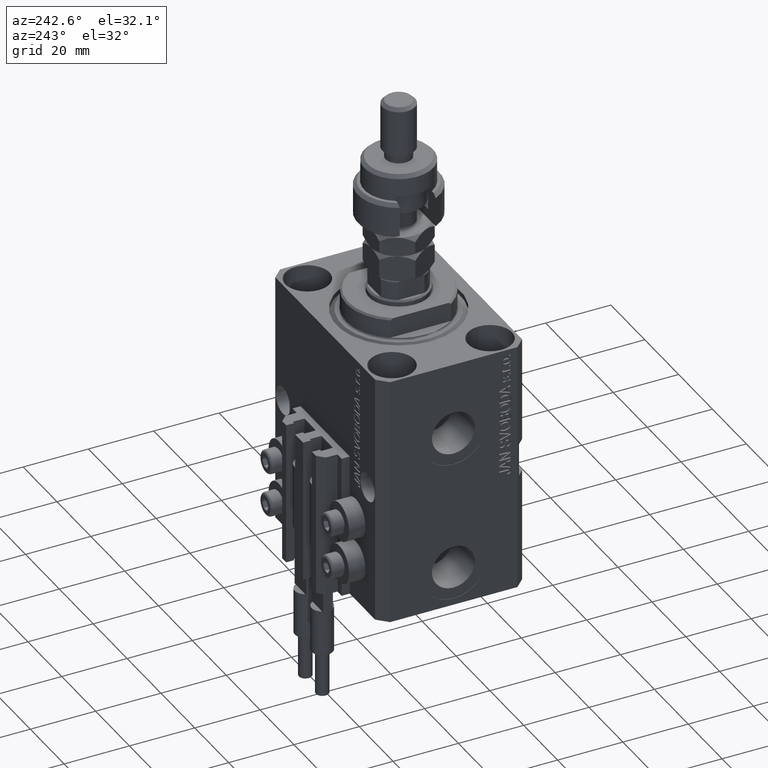
[diagram: clean part render]
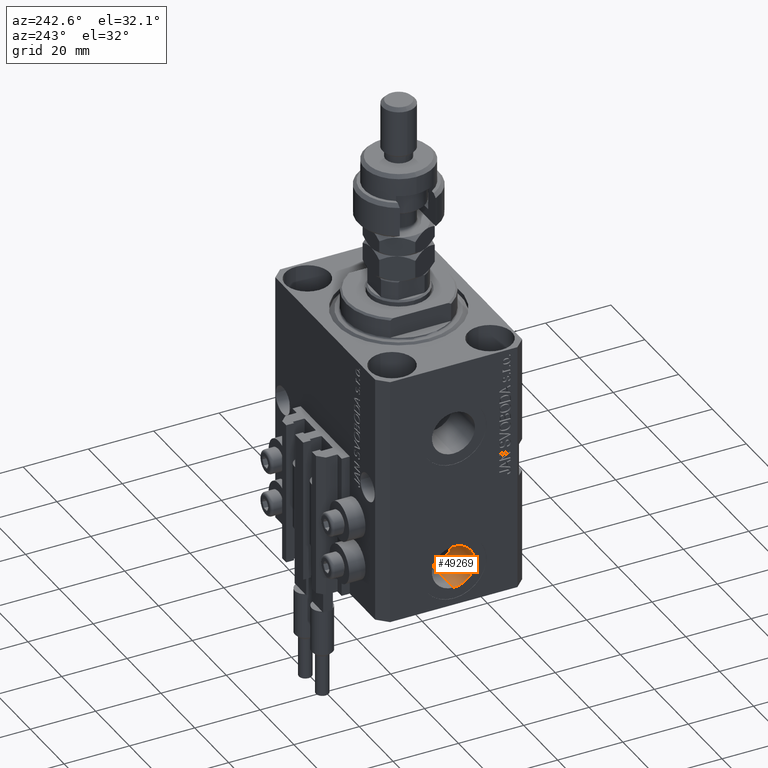
[diagram: same view with one face highlighted and labeled with its STEP entity id]
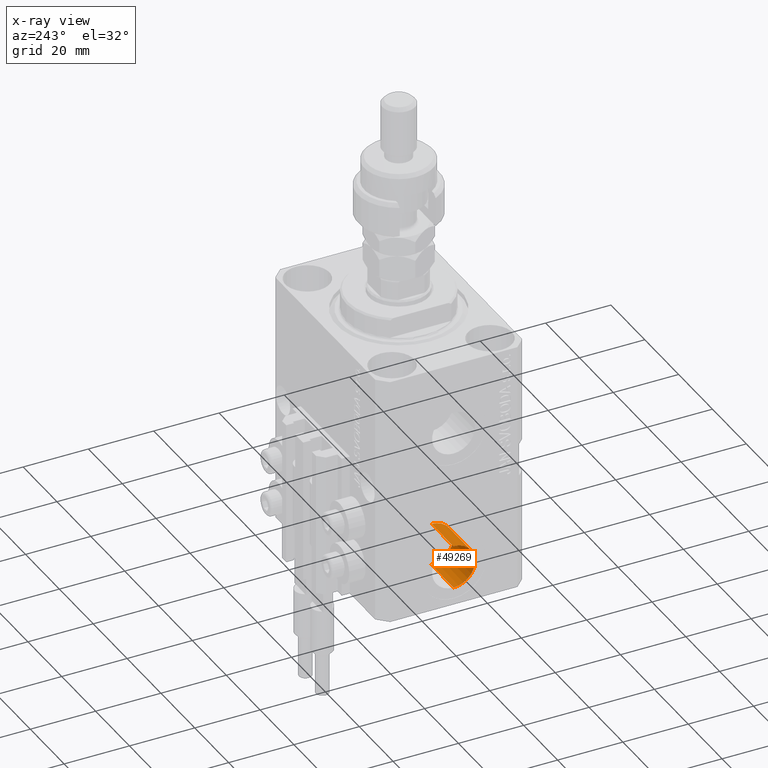
[diagram: x-ray of the same camera — body ghosted, the highlighted face saturated]
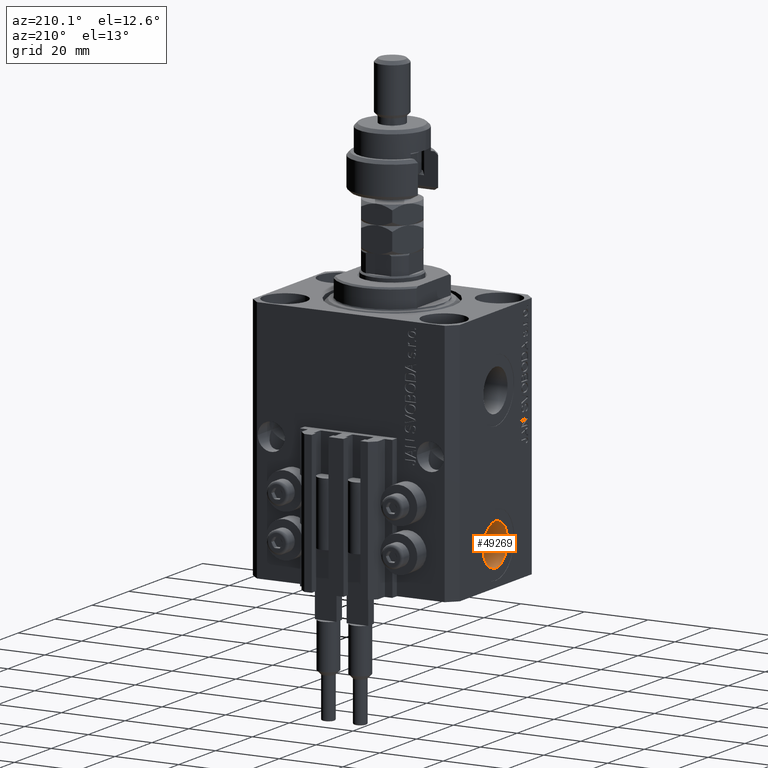
[diagram: same view with one face highlighted and labeled with its STEP entity id]
A machine part, auxiliary view. The second image highlights one B-rep face of the part: STEP entity #49269.
The next image is the same camera in x-ray: the body ghosted, the highlighted face saturated — about 0% of this face is hidden behind the body in this view.
A second angle (auxiliary view) of the same face is appended — the face is thin or edge-on in the first view.
In plain terms, the highlighted cylindrical surface (edge-blend (fillet) strip) has radius 6.58 mm, axis along (-1, -0, -0).
Its self-contained STEP definition (entity closure, byte-faithful):
#90 = CARTESIAN_POINT ( 'NONE',  ( -19.39999999999650271, -6.938893903907228378E-15, -65.00000000000000000 ) ) ;
#4144 = ORIENTED_EDGE ( 'NONE', *, *, #40771, .F. ) ;
#4472 = LINE ( 'NONE', #20309, #28624 ) ;
#5113 = EDGE_CURVE ( 'NONE', #42016, #50476, #9155, .T. ) ;
#7872 = FACE_OUTER_BOUND ( 'NONE', #27481, .T. ) ;
#9155 = CIRCLE ( 'NONE', #49822, 6.580000000000002736 ) ;
#9468 = CARTESIAN_POINT ( 'NONE',  ( -19.39999999999650271, -6.133076310068269336E-15, -71.57999999999999829 ) ) ;
#9536 = VERTEX_POINT ( 'NONE', #9468 ) ;
#10166 = CIRCLE ( 'NONE', #36722, 6.580000000000002736 ) ;
#10788 = DIRECTION ( 'NONE',  ( -1.000000000000000000, 0.000000000000000000, 0.000000000000000000 ) ) ;
#14215 = ORIENTED_EDGE ( 'NONE', *, *, #5113, .T. ) ;
#15043 = CARTESIAN_POINT ( 'NONE',  ( -19.39999999999650271, -6.938893903907228378E-15, -58.42000000000000171 ) ) ;
#17998 = EDGE_CURVE ( 'NONE', #9536, #42016, #4472, .T. ) ;
#18836 = DIRECTION ( 'NONE',  ( 0.000000000000000000, 0.000000000000000000, 1.000000000000000000 ) ) ;
#20309 = CARTESIAN_POINT ( 'NONE',  ( -19.39999999999650271, -6.133076310068269336E-15, -71.57999999999999829 ) ) ;
#21426 = CARTESIAN_POINT ( 'NONE',  ( -32.39999999999650271, -6.133076310068269336E-15, -71.57999999999999829 ) ) ;
#23028 = ORIENTED_EDGE ( 'NONE', *, *, #17998, .T. ) ;
#26532 = VECTOR ( 'NONE', #39678, 1000.000000000000000 ) ;
#27481 = EDGE_LOOP ( 'NONE', ( #4144, #23028, #14215, #45116 ) ) ;
#28499 = CARTESIAN_POINT ( 'NONE',  ( -19.39999999999650271, -6.938893903907228378E-15, -58.42000000000000171 ) ) ;
#28624 = VECTOR ( 'NONE', #35908, 1000.000000000000000 ) ;
#28758 = AXIS2_PLACEMENT_3D ( 'NONE', #90, #31769, #47608 ) ;
#30829 = EDGE_CURVE ( 'NONE', #39574, #50476, #50315, .T. ) ;
#31769 = DIRECTION ( 'NONE',  ( -1.000000000000000000, -0.000000000000000000, -0.000000000000000000 ) ) ;
#35908 = DIRECTION ( 'NONE',  ( -1.000000000000000000, -0.000000000000000000, -0.000000000000000000 ) ) ;
#36722 = AXIS2_PLACEMENT_3D ( 'NONE', #39708, #47501, #50871 ) ;
#39104 = CARTESIAN_POINT ( 'NONE',  ( -32.39999999999650271, -6.938893903907228378E-15, -65.00000000000000000 ) ) ;
#39562 = CYLINDRICAL_SURFACE ( 'NONE', #28758, 6.580000000000002736 ) ;
#39574 = VERTEX_POINT ( 'NONE', #15043 ) ;
#39678 = DIRECTION ( 'NONE',  ( -1.000000000000000000, -0.000000000000000000, -0.000000000000000000 ) ) ;
#39708 = CARTESIAN_POINT ( 'NONE',  ( -19.39999999999650271, -6.938893903907228378E-15, -65.00000000000000000 ) ) ;
#40771 = EDGE_CURVE ( 'NONE', #9536, #39574, #10166, .T. ) ;
#42016 = VERTEX_POINT ( 'NONE', #21426 ) ;
#45116 = ORIENTED_EDGE ( 'NONE', *, *, #30829, .F. ) ;
#47501 = DIRECTION ( 'NONE',  ( -1.000000000000000000, 0.000000000000000000, 0.000000000000000000 ) ) ;
#47608 = DIRECTION ( 'NONE',  ( 0.000000000000000000, 0.000000000000000000, 1.000000000000000000 ) ) ;
#49269 = ADVANCED_FACE ( 'NONE', ( #7872 ), #39562, .F. ) ;
#49822 = AXIS2_PLACEMENT_3D ( 'NONE', #39104, #10788, #18836 ) ;
#50315 = LINE ( 'NONE', #28499, #26532 ) ;
#50476 = VERTEX_POINT ( 'NONE', #50927 ) ;
#50871 = DIRECTION ( 'NONE',  ( 0.000000000000000000, 0.000000000000000000, 1.000000000000000000 ) ) ;
#50927 = CARTESIAN_POINT ( 'NONE',  ( -32.39999999999650271, -6.938893903907228378E-15, -58.42000000000000171 ) ) ;